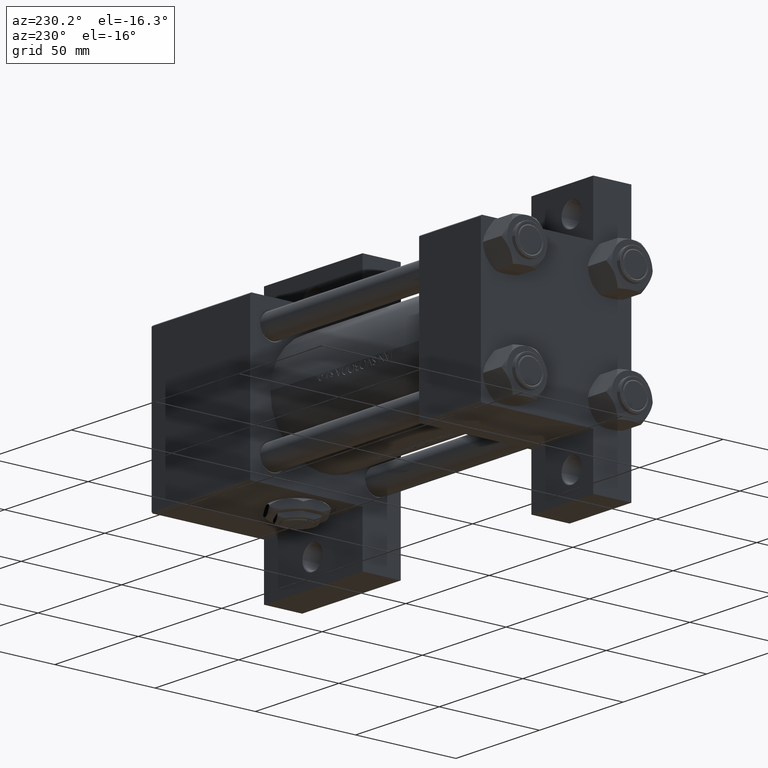
[diagram: clean part render]
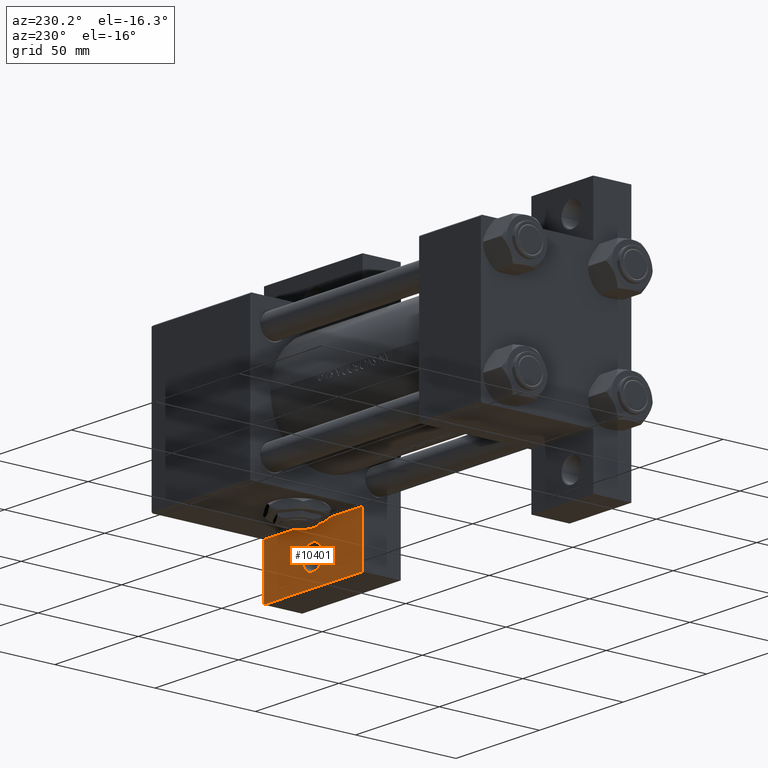
[diagram: same view with one face highlighted and labeled with its STEP entity id]
A machine part, auxiliary view. The second image highlights one B-rep face of the part: STEP entity #10401.
In plain terms, the highlighted planar face has unit normal (0, 1, 0).
Its self-contained STEP definition (entity closure, byte-faithful):
#549 = VERTEX_POINT ( 'NONE', #24433 ) ;
#589 = LINE ( 'NONE', #42407, #20431 ) ;
#1179 = CARTESIAN_POINT ( 'NONE',  ( 138.0000000000000284, 63.49999999999997158, -18.50000000000000000 ) ) ;
#1411 = AXIS2_PLACEMENT_3D ( 'NONE', #19252, #42414, #8305 ) ;
#1911 = AXIS2_PLACEMENT_3D ( 'NONE', #18606, #26822, #29570 ) ;
#3007 = EDGE_CURVE ( 'NONE', #43625, #26449, #14989, .T. ) ;
#3737 = EDGE_CURVE ( 'NONE', #30468, #549, #36807, .T. ) ;
#5055 = ORIENTED_EDGE ( 'NONE', *, *, #22430, .F. ) ;
#6462 = VERTEX_POINT ( 'NONE', #31570 ) ;
#8260 = CARTESIAN_POINT ( 'NONE',  ( 168.0000000000000284, 51.00000000000000000, -18.50000000000000000 ) ) ;
#8305 = DIRECTION ( 'NONE',  ( 1.000000000000000000, 0.000000000000000000, 0.000000000000000000 ) ) ;
#10401 = ADVANCED_FACE ( 'NONE', ( #41018, #42006 ), #18852, .T. ) ;
#10576 = EDGE_CURVE ( 'NONE', #6462, #43625, #35277, .T. ) ;
#10597 = EDGE_LOOP ( 'NONE', ( #30143, #40834 ) ) ;
#11734 = DIRECTION ( 'NONE',  ( -1.067522139062649685E-15, -1.000000000000000000, 0.000000000000000000 ) ) ;
#13008 = CARTESIAN_POINT ( 'NONE',  ( 197.0000000000000284, 63.50000000000000000, -18.50000000000000000 ) ) ;
#14989 = LINE ( 'NONE', #38867, #32796 ) ;
#16022 = ORIENTED_EDGE ( 'NONE', *, *, #10576, .F. ) ;
#16342 = DIRECTION ( 'NONE',  ( 1.000000000000000000, 4.704334850106595794E-16, 0.000000000000000000 ) ) ;
#18302 = ORIENTED_EDGE ( 'NONE', *, *, #3007, .F. ) ;
#18606 = CARTESIAN_POINT ( 'NONE',  ( 0.000000000000000000, 0.000000000000000000, -18.50000000000000000 ) ) ;
#18852 = PLANE ( 'NONE',  #1911 ) ;
#18969 = DIRECTION ( 'NONE',  ( 1.000000000000000000, 0.000000000000000000, 0.000000000000000000 ) ) ;
#19252 = CARTESIAN_POINT ( 'NONE',  ( 168.0000000000000284, 51.00000000000000000, -18.50000000000000000 ) ) ;
#19972 = DIRECTION ( 'NONE',  ( -1.000000000000000000, 3.528251137579946599E-16, -0.000000000000000000 ) ) ;
#20431 = VECTOR ( 'NONE', #19972, 1000.000000000000000 ) ;
#20656 = LINE ( 'NONE', #21158, #43470 ) ;
#21077 = EDGE_CURVE ( 'NONE', #32752, #6462, #20656, .T. ) ;
#21158 = CARTESIAN_POINT ( 'NONE',  ( 138.0000000000000284, 63.49999999999997158, -18.50000000000000000 ) ) ;
#21685 = AXIS2_PLACEMENT_3D ( 'NONE', #8260, #34911, #18969 ) ;
#22430 = EDGE_CURVE ( 'NONE', #26449, #32752, #589, .T. ) ;
#23403 = EDGE_CURVE ( 'NONE', #549, #30468, #49119, .T. ) ;
#24433 = CARTESIAN_POINT ( 'NONE',  ( 162.0005000000000166, 51.00000000000000000, -18.50000000000000000 ) ) ;
#26449 = VERTEX_POINT ( 'NONE', #29353 ) ;
#26822 = DIRECTION ( 'NONE',  ( 0.000000000000000000, 0.000000000000000000, 1.000000000000000000 ) ) ;
#29353 = CARTESIAN_POINT ( 'NONE',  ( 197.0000000000000000, 37.49999999999997868, -18.50000000000000000 ) ) ;
#29570 = DIRECTION ( 'NONE',  ( 1.000000000000000000, 0.000000000000000000, -0.000000000000000000 ) ) ;
#30143 = ORIENTED_EDGE ( 'NONE', *, *, #3737, .T. ) ;
#30468 = VERTEX_POINT ( 'NONE', #41706 ) ;
#31570 = CARTESIAN_POINT ( 'NONE',  ( 138.0000000000000284, 63.49999999999997158, -18.50000000000000000 ) ) ;
#32627 = DIRECTION ( 'NONE',  ( 1.067522139062651657E-15, 1.000000000000000000, -0.000000000000000000 ) ) ;
#32752 = VERTEX_POINT ( 'NONE', #34912 ) ;
#32796 = VECTOR ( 'NONE', #11734, 1000.000000000000000 ) ;
#33937 = ORIENTED_EDGE ( 'NONE', *, *, #21077, .F. ) ;
#34911 = DIRECTION ( 'NONE',  ( -0.000000000000000000, -0.000000000000000000, -1.000000000000000000 ) ) ;
#34912 = CARTESIAN_POINT ( 'NONE',  ( 138.0000000000000000, 37.50000000000000000, -18.50000000000000355 ) ) ;
#35277 = LINE ( 'NONE', #1179, #40068 ) ;
#36373 = EDGE_LOOP ( 'NONE', ( #33937, #5055, #18302, #16022 ) ) ;
#36807 = CIRCLE ( 'NONE', #21685, 5.999500000000018929 ) ;
#38867 = CARTESIAN_POINT ( 'NONE',  ( 197.0000000000000284, 63.50000000000000000, -18.50000000000000000 ) ) ;
#40068 = VECTOR ( 'NONE', #16342, 1000.000000000000000 ) ;
#40834 = ORIENTED_EDGE ( 'NONE', *, *, #23403, .T. ) ;
#41018 = FACE_BOUND ( 'NONE', #10597, .T. ) ;
#41706 = CARTESIAN_POINT ( 'NONE',  ( 173.9995000000000687, 51.00000000000000000, -18.50000000000000000 ) ) ;
#42006 = FACE_OUTER_BOUND ( 'NONE', #36373, .T. ) ;
#42407 = CARTESIAN_POINT ( 'NONE',  ( 138.0000000000000000, 37.50000000000000000, -18.50000000000000000 ) ) ;
#42414 = DIRECTION ( 'NONE',  ( -0.000000000000000000, -0.000000000000000000, -1.000000000000000000 ) ) ;
#43470 = VECTOR ( 'NONE', #32627, 1000.000000000000000 ) ;
#43625 = VERTEX_POINT ( 'NONE', #13008 ) ;
#49119 = CIRCLE ( 'NONE', #1411, 5.999500000000018929 ) ;